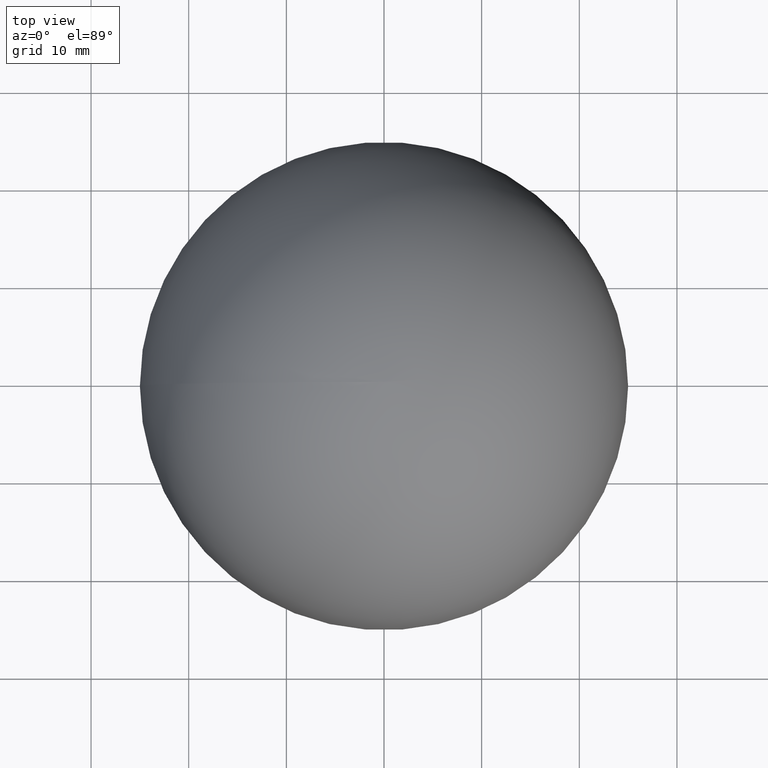
[diagram: clean part render]
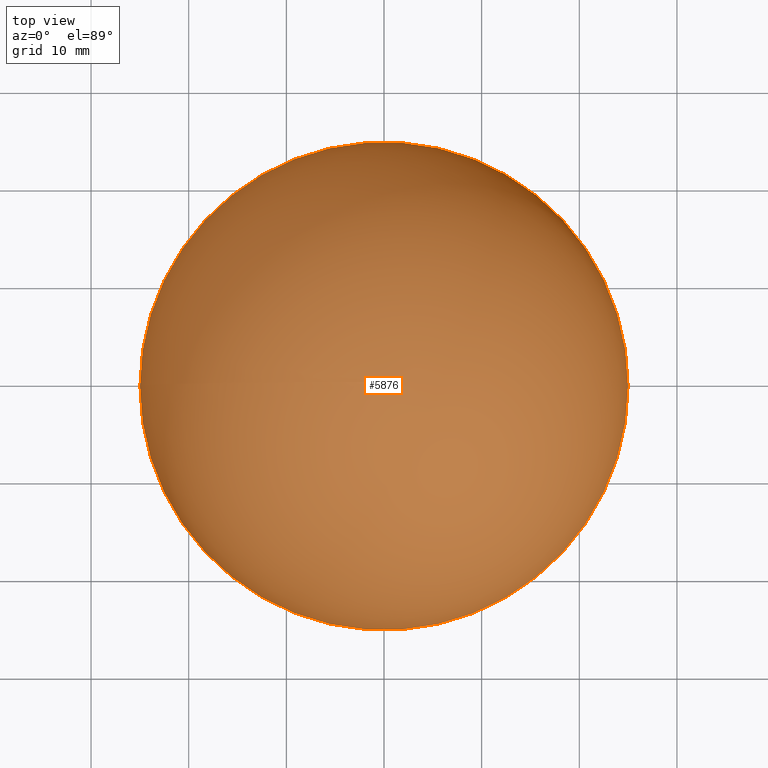
[diagram: same view with one face highlighted and labeled with its STEP entity id]
A machine part, top view. The second image highlights one B-rep face of the part: STEP entity #5876.
In plain terms, the highlighted spherical surface has radius 25 mm.
Its self-contained STEP definition (entity closure, byte-faithful):
#617 = EDGE_CURVE ( 'NONE', #8587, #3888, #2941, .T. ) ;
#1155 = CARTESIAN_POINT ( 'NONE',  ( 0.000000000000000000, 0.000000000000000000, 0.000000000000000000 ) ) ;
#1271 = AXIS2_PLACEMENT_3D ( 'NONE', #5322, #3714, #1428 ) ;
#1428 = DIRECTION ( 'NONE',  ( -1.000000000000000000, 0.000000000000000000, -6.982962677686266711E-15 ) ) ;
#2620 = DIRECTION ( 'NONE',  ( -1.000000000000000000, 0.000000000000000000, -6.982962677686266711E-15 ) ) ;
#2941 = CIRCLE ( 'NONE', #4020, 25.00000000000000000 ) ;
#3047 = CARTESIAN_POINT ( 'NONE',  ( 25.00000000000000000, 3.061616997868383043E-15, 1.745740669421566678E-13 ) ) ;
#3202 = AXIS2_PLACEMENT_3D ( 'NONE', #1155, #7458, #2620 ) ;
#3388 = EDGE_CURVE ( 'NONE', #3888, #8587, #9410, .T. ) ;
#3714 = DIRECTION ( 'NONE',  ( 6.982962677686266711E-15, 0.000000000000000000, -1.000000000000000000 ) ) ;
#3888 = VERTEX_POINT ( 'NONE', #9070 ) ;
#3988 = DIRECTION ( 'NONE',  ( 6.982962677686266711E-15, 0.000000000000000000, -1.000000000000000000 ) ) ;
#4020 = AXIS2_PLACEMENT_3D ( 'NONE', #4776, #3988, #9554 ) ;
#4776 = CARTESIAN_POINT ( 'NONE',  ( 0.000000000000000000, 0.000000000000000000, 0.000000000000000000 ) ) ;
#5015 = ORIENTED_EDGE ( 'NONE', *, *, #3388, .F. ) ;
#5322 = CARTESIAN_POINT ( 'NONE',  ( 0.000000000000000000, 0.000000000000000000, 0.000000000000000000 ) ) ;
#5876 = ADVANCED_FACE ( 'NONE', ( #6030 ), #6515, .T. ) ;
#6030 = FACE_OUTER_BOUND ( 'NONE', #7910, .T. ) ;
#6325 = ORIENTED_EDGE ( 'NONE', *, *, #617, .F. ) ;
#6515 = SPHERICAL_SURFACE ( 'NONE', #3202, 25.00000000000000000 ) ;
#7458 = DIRECTION ( 'NONE',  ( -6.982962677686266711E-15, 0.000000000000000000, 1.000000000000000000 ) ) ;
#7910 = EDGE_LOOP ( 'NONE', ( #5015, #6325 ) ) ;
#8587 = VERTEX_POINT ( 'NONE', #3047 ) ;
#9070 = CARTESIAN_POINT ( 'NONE',  ( -25.00000000000000000, 0.000000000000000000, -1.745740669421566678E-13 ) ) ;
#9410 = CIRCLE ( 'NONE', #1271, 25.00000000000000000 ) ;
#9554 = DIRECTION ( 'NONE',  ( -1.000000000000000000, 0.000000000000000000, -6.982962677686266711E-15 ) ) ;